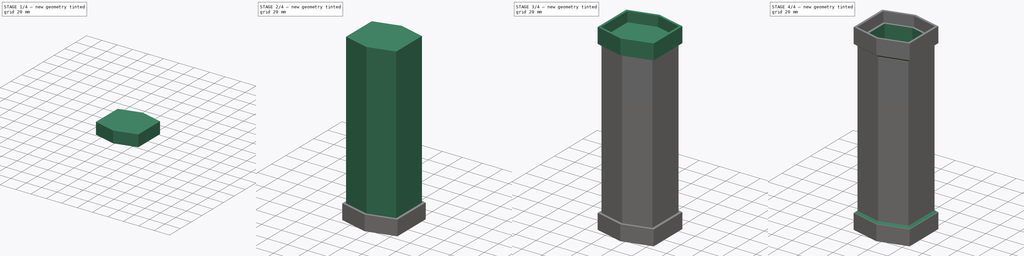
[diagram: build sequence overview — one tinted view per stage of 4, left to right]
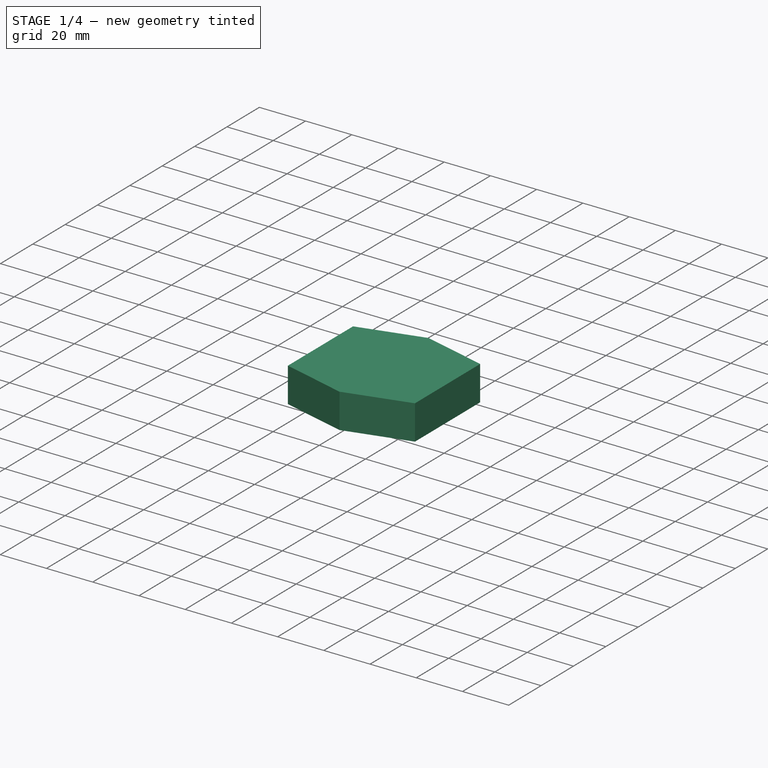
[diagram: stage 1 of 4 — iso view after this stage's code; geometry added in this stage tinted green]
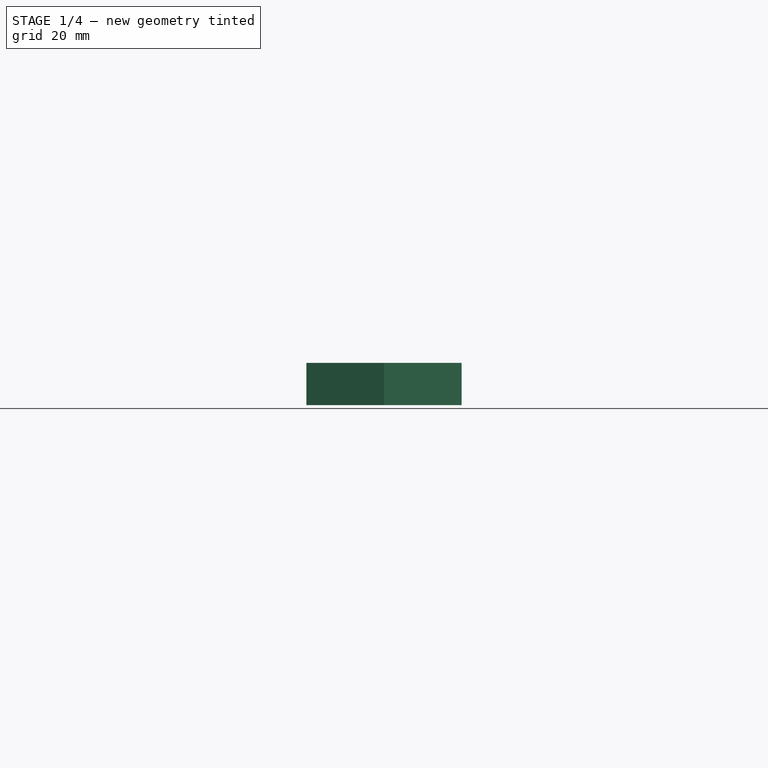
[diagram: stage 1 of 4 — front view after this stage's code; geometry added in this stage tinted green]
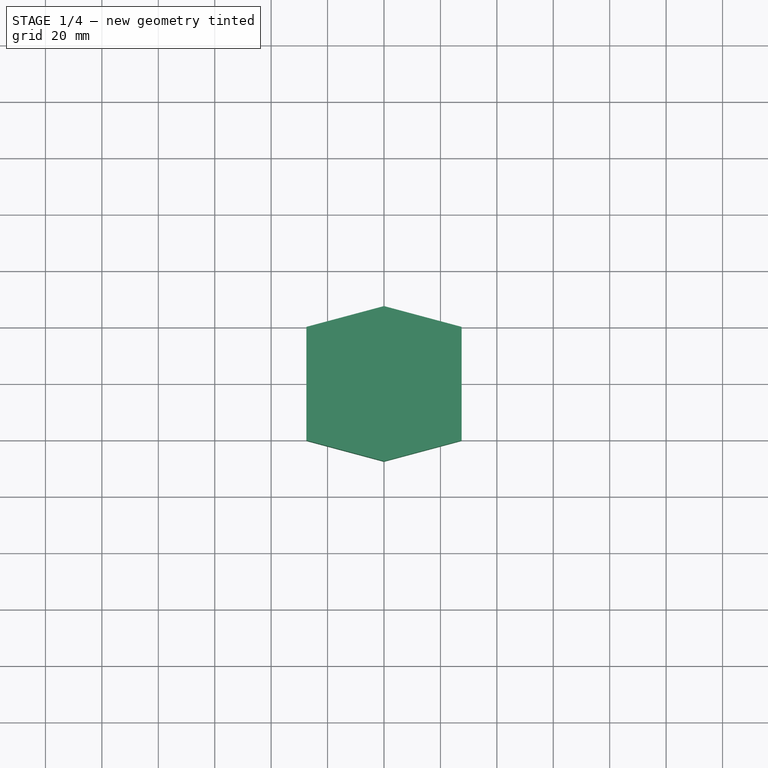
[diagram: stage 1 of 4 — top view after this stage's code; geometry added in this stage tinted green]
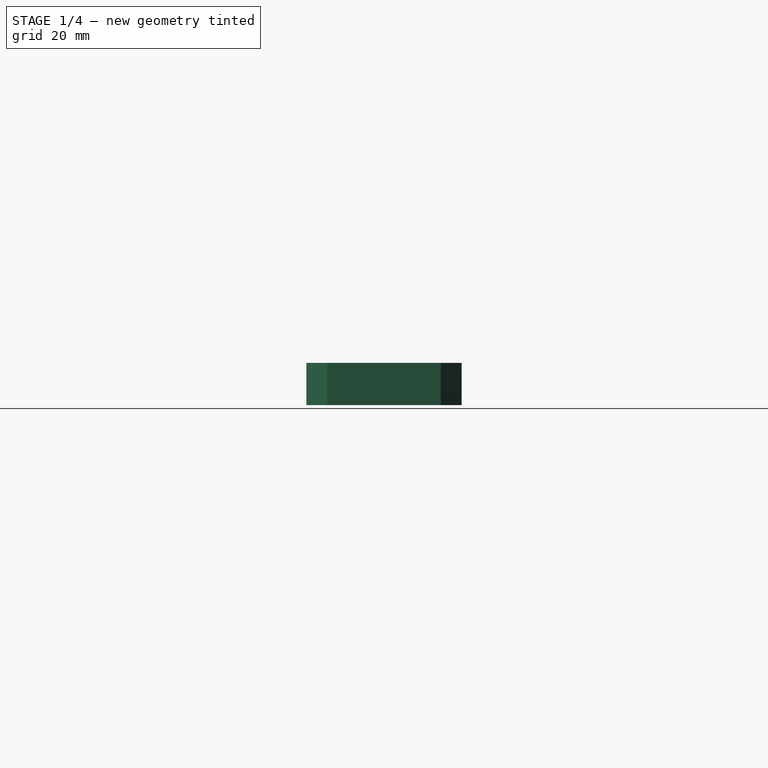
[diagram: stage 1 of 4 — right view after this stage's code; geometry added in this stage tinted green]
FCSTD DOCUMENT  (FreeCAD 0.20R28769 (Git))
Label: Aeroponics_Modular_4-Tower_Hub-Connector
License: All rights reserved
LicenseURL: http://en.wikipedia.org/wiki/All_rights_reserved
objects: Sketcher::SketchObject×6, PartDesign::Pad×6, PartDesign::Body×6, Part::Cut×3, Part::MultiFuse×2, Part::Chamfer×1
note: 30 computed .brp shape members not serialized (recipe doc carries the construction recipe); baked Part::Feature solids carry a one-line shape summary decoded from their .brp

FEATURE [PartDesign::Body] Body
  Group = -> [Sketch,Pad]
  Origin = -> Origin
  Placement = pos=(0,0,15) rot=(0,0,1;0rad)
  Tip = -> Pad
FEATURE [Sketcher::SketchObject] Sketch001
  FullyConstrained = true
  MapMode = 5
  Support = -> [XY_Plane001]
  sketch-geometry (6):
    g0: LineSegment StartX=0 StartY=27.5 StartZ=0 EndX=27.5 EndY=20.1314 EndZ=0
    g1: LineSegment StartX=27.5 StartY=20.1314 StartZ=0 EndX=27.5 EndY=-20.1314 EndZ=0
    g2: LineSegment StartX=27.5 StartY=-20.1314 StartZ=0 EndX=0 EndY=-27.5 EndZ=0
    g3: LineSegment StartX=0 StartY=-27.5 StartZ=0 EndX=-27.5 EndY=-20.1314 EndZ=0
    g4: LineSegment StartX=-27.5 StartY=-20.1314 StartZ=0 EndX=-27.5 EndY=20.1314 EndZ=0
    g5: LineSegment StartX=-27.5 StartY=20.1314 StartZ=0 EndX=0 EndY=27.5 EndZ=0
  constraints (17):
    c: PointOnObject(g0,g-2)
    c: Coincident(g0,g1)
    c: Coincident(g1,g2)
    c: PointOnObject(g2,g-2)
    c: Coincident(g2,g3)
    c: Coincident(g3,g4)
    c: Vertical(g4)
    c: Coincident(g4,g5)
    c: Coincident(g5,g0)
    c: Equal(g5,g0)
    c: Equal(g3,g2)
    c: Symmetric(g0,g1,g-1)
    c: Angle(g5,g0) = 2.61799
    c: Angle(g2,g3) = 2.61799
    c: DistanceY(g2,g0) = 55
    c: Horizontal(g1,g3)
    c: DistanceX(g4,g0) = 55
FEATURE [PartDesign::Pad] Pad001
  Direction = (0,0,1)
  Length = 15
  Length2 = 10
  Profile = -> Sketch001
  ReferenceAxis = -> Sketch001 [N_Axis]
  Type = 0
FEATURE [PartDesign::Body] Body002
  Group = -> [Sketch002,Pad002]
  Origin = -> Origin002
  Tip = -> Pad002
FEATURE [Sketcher::SketchObject] Sketch003
  FullyConstrained = true
  MapMode = 5
  Support = -> [XY_Plane003]
  sketch-geometry (6):
    g0: LineSegment StartX=0 StartY=25.25 StartZ=0 EndX=25.25 EndY=18.4843 EndZ=0
    g1: LineSegment StartX=25.25 StartY=18.4843 StartZ=0 EndX=25.25 EndY=-18.4843 EndZ=0
    g2: LineSegment StartX=25.25 StartY=-18.4843 StartZ=0 EndX=0 EndY=-25.25 EndZ=0
    g3: LineSegment StartX=0 StartY=-25.25 StartZ=0 EndX=-25.25 EndY=-18.4843 EndZ=0
    g4: LineSegment StartX=-25.25 StartY=-18.4843 StartZ=0 EndX=-25.25 EndY=18.4843 EndZ=0
    g5: LineSegment StartX=-25.25 StartY=18.4843 StartZ=0 EndX=0 EndY=25.25 EndZ=0
  constraints (17):
    c: PointOnObject(g0,g-2)
    c: Coincident(g0,g1)
    c: Coincident(g1,g2)
    c: PointOnObject(g2,g-2)
    c: Coincident(g2,g3)
    c: Coincident(g3,g4)
    c: Vertical(g4)
    c: Coincident(g4,g5)
    c: Coincident(g5,g0)
    c: Equal(g5,g0)
    c: Equal(g2,g3)
    c: Horizontal(g3,g1)
    c: Symmetric(g0,g1,g-1)
    c: Angle(g5,g0) = 2.61799
    c: Angle(g2,g3) = 2.61799
    c: DistanceY(g2,g0) = 50.5
    c: DistanceX(g3,g1) = 50.5
FEATURE [PartDesign::Pad] Pad003
  Direction = (0,0,1)
  Length = 10
  Length2 = 10
  Profile = -> Sketch003
  ReferenceAxis = -> Sketch003 [N_Axis]
  Type = 0
FEATURE [PartDesign::Body] Body004
  Group = -> [Sketch004,Pad004]
  Origin = -> Origin004
  Placement = pos=(0,0,5) rot=(0,0,1;0rad)
  Tip = -> Pad004
FEATURE [Part::Cut] Cut
  Base = -> Body001
  Tool = -> Body003
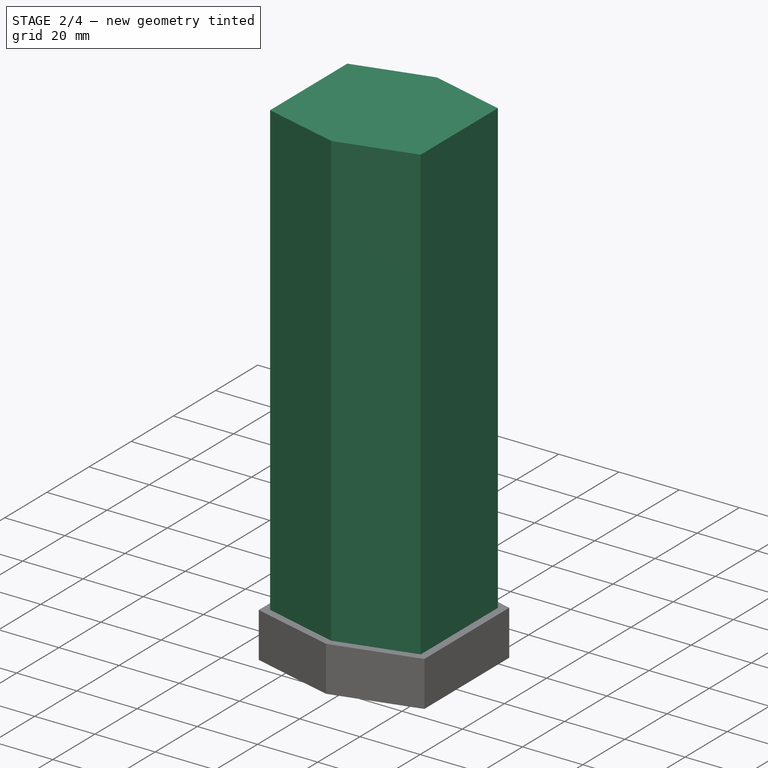
[diagram: stage 2 of 4 — iso view after this stage's code; geometry added in this stage tinted green]
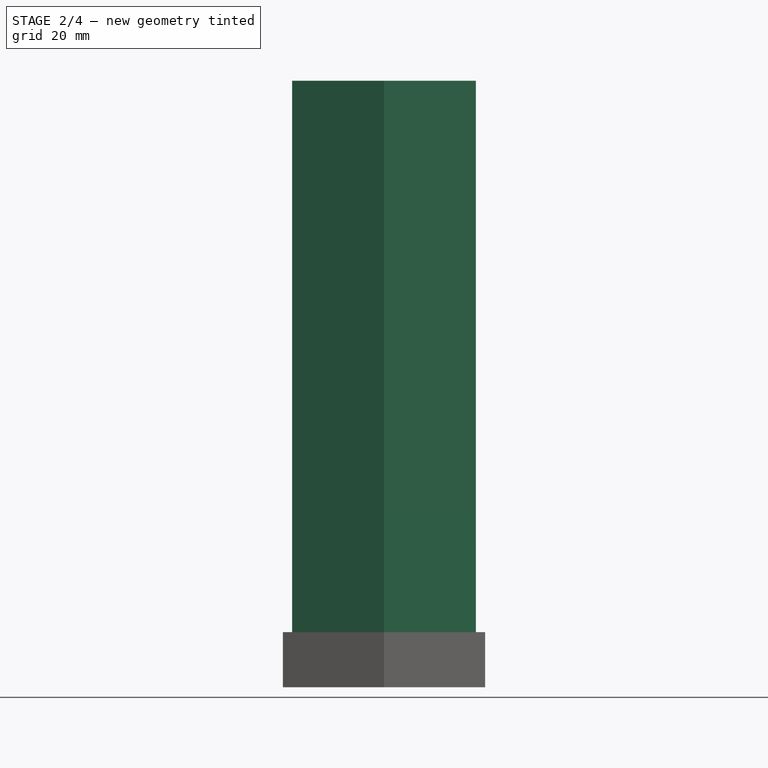
[diagram: stage 2 of 4 — front view after this stage's code; geometry added in this stage tinted green]
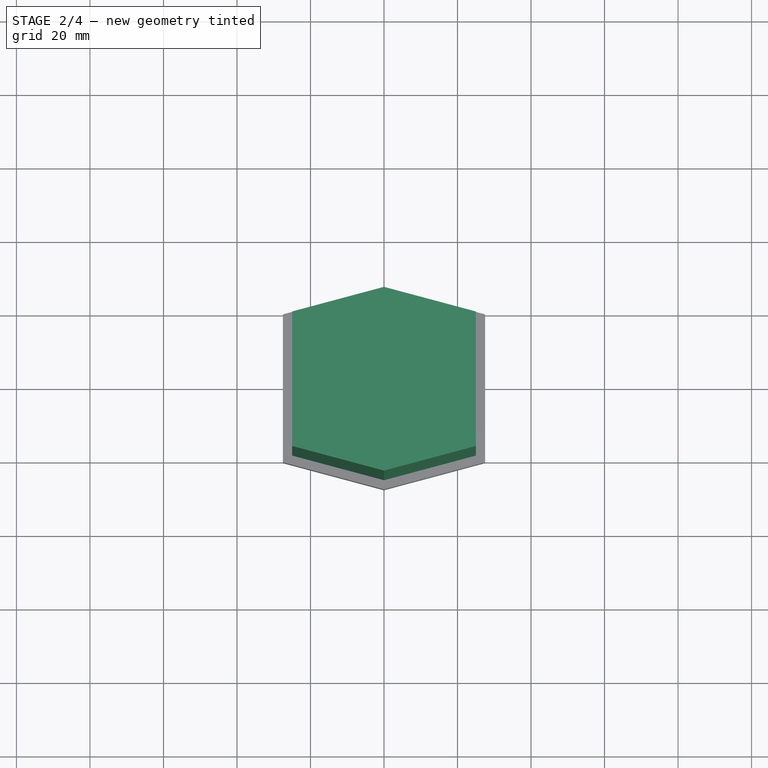
[diagram: stage 2 of 4 — top view after this stage's code; geometry added in this stage tinted green]
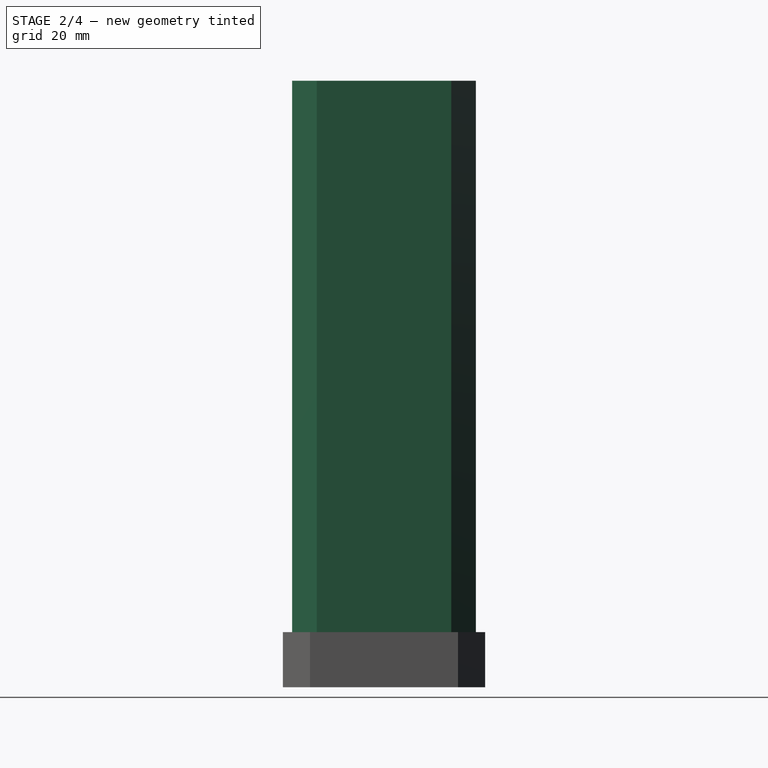
[diagram: stage 2 of 4 — right view after this stage's code; geometry added in this stage tinted green]
FEATURE [Sketcher::SketchObject] Sketch
  FullyConstrained = true
  MapMode = 5
  Support = -> [XY_Plane]
  sketch-geometry (6):
    g0: LineSegment StartX=0 StartY=25 StartZ=0 EndX=25 EndY=18.3013 EndZ=0
    g1: LineSegment StartX=25 StartY=18.3013 StartZ=0 EndX=25 EndY=-18.3013 EndZ=0
    g2: LineSegment StartX=25 StartY=-18.3013 StartZ=0 EndX=0 EndY=-25 EndZ=0
    g3: LineSegment StartX=0 StartY=-25 StartZ=0 EndX=-25 EndY=-18.3013 EndZ=0
    g4: LineSegment StartX=-25 StartY=-18.3013 StartZ=0 EndX=-25 EndY=18.3013 EndZ=0
    g5: LineSegment StartX=-25 StartY=18.3013 StartZ=0 EndX=0 EndY=25 EndZ=0
  constraints (17):
    c: PointOnObject(g0,g-2)
    c: Coincident(g0,g1)
    c: Coincident(g1,g2)
    c: PointOnObject(g2,g-2)
    c: Coincident(g2,g3)
    c: Coincident(g3,g4)
    c: Vertical(g4)
    c: Coincident(g4,g5)
    c: Coincident(g5,g0)
    c: Equal(g1,g4)
    c: Angle(g5,g0) = 2.61799
    c: Angle(g2,g3) = 2.61799
    c: Equal(g2,g3)
    c: Horizontal(g3,g1)
    c: Symmetric(g0,g1,g-1)
    c: DistanceX(g3,g1) = 50
    c: DistanceY(g2,g0) = 50
FEATURE [PartDesign::Pad] Pad
  Direction = (0,0,1)
  Length = 150
  Length2 = 10
  Profile = -> Sketch
  ReferenceAxis = -> Sketch [N_Axis]
  Type = 0
FEATURE [PartDesign::Body] Body003
  Group = -> [Sketch003,Pad003]
  Origin = -> Origin003
  Tip = -> Pad003
FEATURE [Sketcher::SketchObject] Sketch004
  FullyConstrained = true
  MapMode = 5
  Support = -> [XY_Plane004]
  sketch-geometry (6):
    g0: LineSegment StartX=0 StartY=25.25 StartZ=0 EndX=25.25 EndY=18.4843 EndZ=0
    g1: LineSegment StartX=25.25 StartY=18.4843 StartZ=0 EndX=25.25 EndY=-18.4843 EndZ=0
    g2: LineSegment StartX=25.25 StartY=-18.4843 StartZ=0 EndX=0 EndY=-25.25 EndZ=0
    g3: LineSegment StartX=0 StartY=-25.25 StartZ=0 EndX=-25.25 EndY=-18.4843 EndZ=0
    g4: LineSegment StartX=-25.25 StartY=-18.4843 StartZ=0 EndX=-25.25 EndY=18.4843 EndZ=0
    g5: LineSegment StartX=-25.25 StartY=18.4843 StartZ=0 EndX=0 EndY=25.25 EndZ=0
  constraints (17):
    c: PointOnObject(g0,g-2)
    c: Coincident(g0,g1)
    c: Coincident(g1,g2)
    c: PointOnObject(g2,g-2)
    c: Coincident(g2,g3)
    c: Coincident(g3,g4)
    c: Vertical(g4)
    c: Coincident(g4,g5)
    c: Coincident(g5,g0)
    c: Equal(g5,g0)
    c: Equal(g2,g3)
    c: Horizontal(g3,g1)
    c: Symmetric(g0,g1,g-1)
    c: Angle(g5,g0) = 2.61799
    c: Angle(g2,g3) = 2.61799
    c: DistanceY(g2,g0) = 50.5
    c: DistanceX(g3,g1) = 50.5
FEATURE [PartDesign::Pad] Pad004
  Direction = (0,0,1)
  Length = 10
  Length2 = 10
  Profile = -> Sketch004
  ReferenceAxis = -> Sketch004 [N_Axis]
  Type = 0
FEATURE [PartDesign::Body] Body005
  Group = -> [Sketch005,Pad005]
  Origin = -> Origin005
  Tip = -> Pad005
FEATURE [Part::MultiFuse] Fusion
  Shapes = -> [Body,Cut]
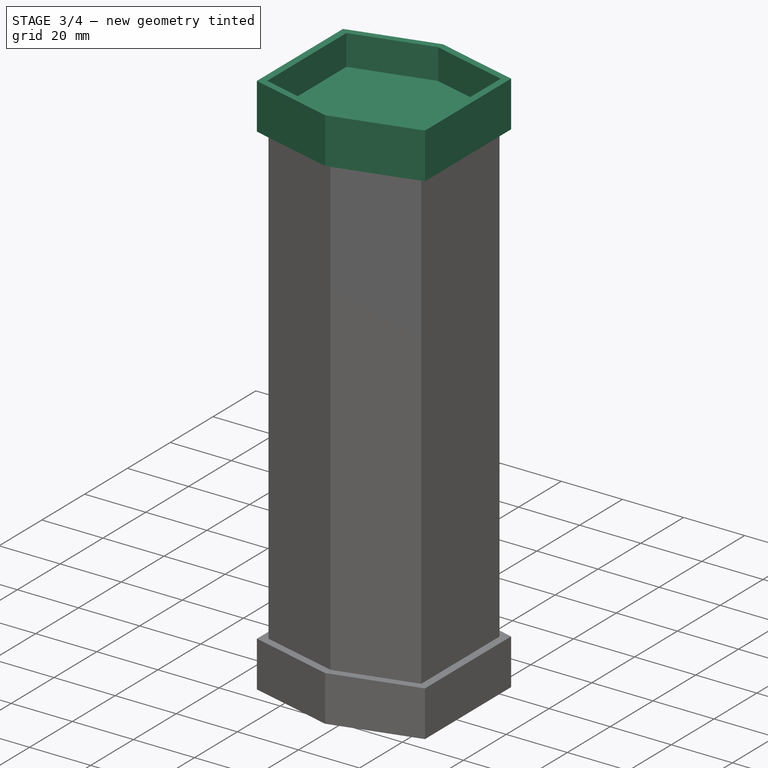
[diagram: stage 3 of 4 — iso view after this stage's code; geometry added in this stage tinted green]
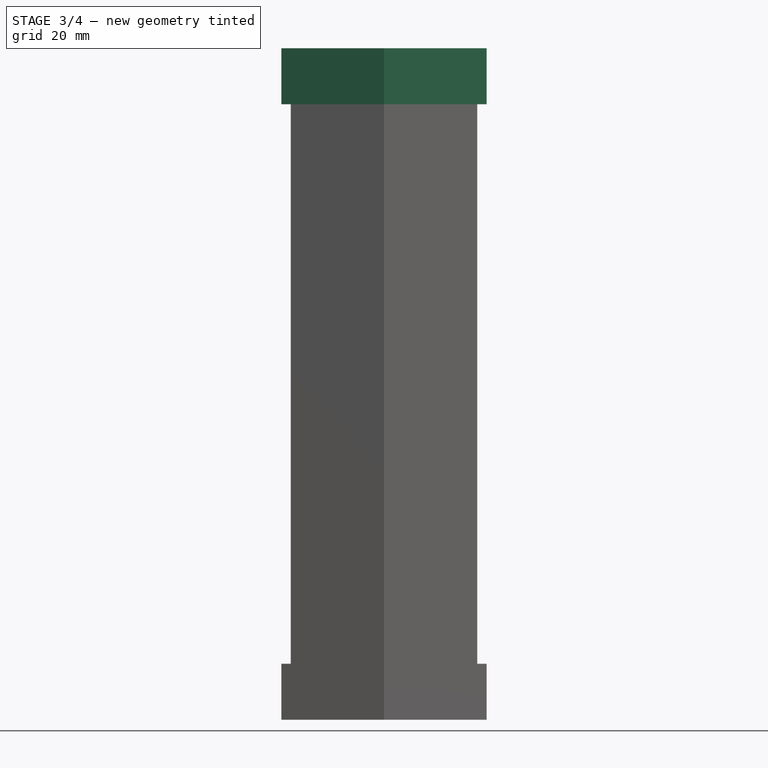
[diagram: stage 3 of 4 — front view after this stage's code; geometry added in this stage tinted green]
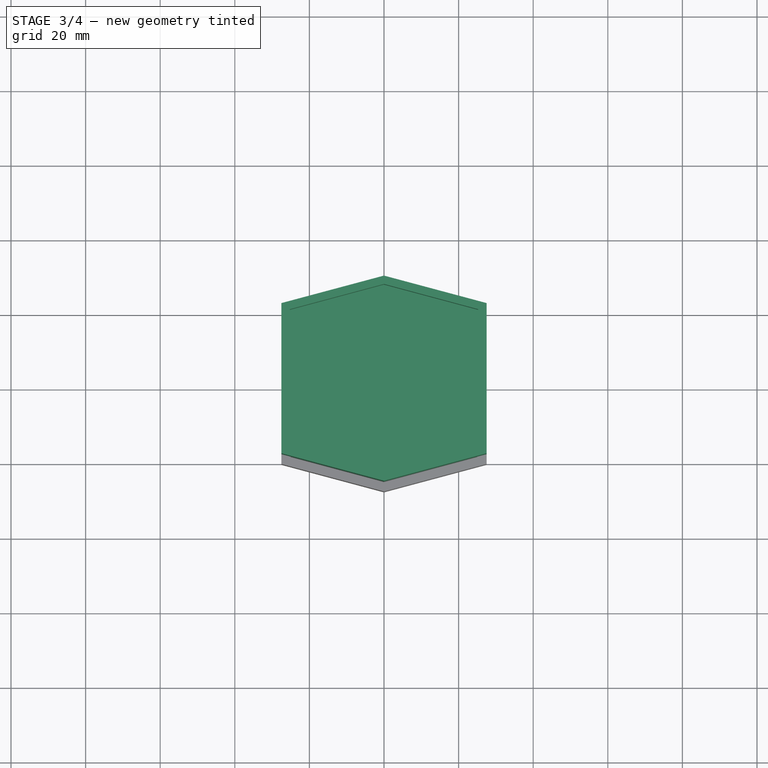
[diagram: stage 3 of 4 — top view after this stage's code; geometry added in this stage tinted green]
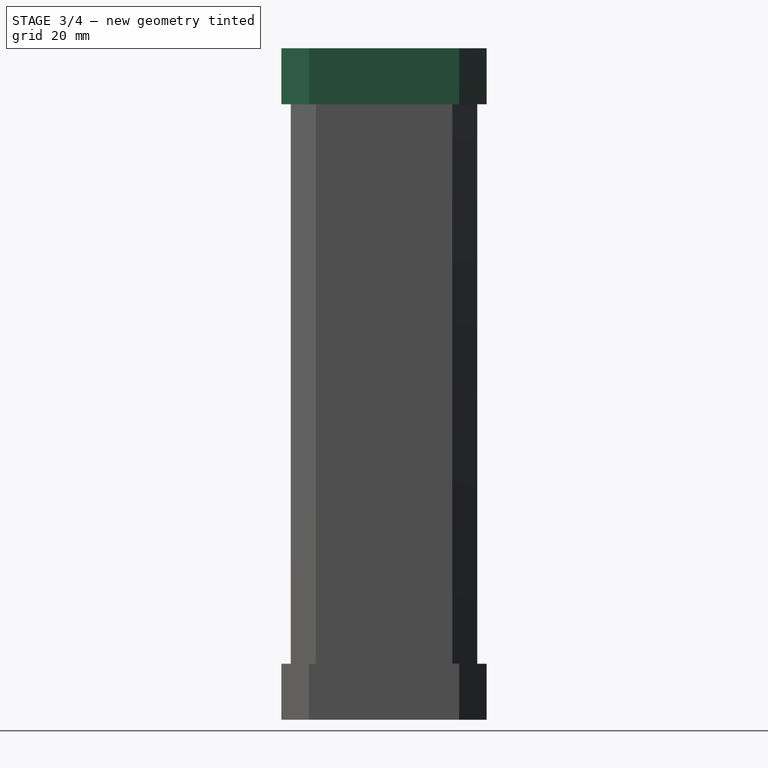
[diagram: stage 3 of 4 — right view after this stage's code; geometry added in this stage tinted green]
FEATURE [PartDesign::Body] Body001
  Group = -> [Sketch001,Pad001]
  Origin = -> Origin001
  Tip = -> Pad001
FEATURE [Sketcher::SketchObject] Sketch002
  FullyConstrained = true
  MapMode = 5
  Support = -> [XY_Plane002]
  sketch-geometry (6):
    g0: LineSegment StartX=0 StartY=27.5 StartZ=0 EndX=27.5 EndY=20.1314 EndZ=0
    g1: LineSegment StartX=27.5 StartY=20.1314 StartZ=0 EndX=27.5 EndY=-20.1314 EndZ=0
    g2: LineSegment StartX=27.5 StartY=-20.1314 StartZ=0 EndX=0 EndY=-27.5 EndZ=0
    g3: LineSegment StartX=0 StartY=-27.5 StartZ=0 EndX=-27.5 EndY=-20.1314 EndZ=0
    g4: LineSegment StartX=-27.5 StartY=-20.1314 StartZ=0 EndX=-27.5 EndY=20.1314 EndZ=0
    g5: LineSegment StartX=-27.5 StartY=20.1314 StartZ=0 EndX=0 EndY=27.5 EndZ=0
  constraints (17):
    c: PointOnObject(g0,g-2)
    c: Coincident(g0,g1)
    c: Coincident(g1,g2)
    c: PointOnObject(g2,g-2)
    c: Coincident(g2,g3)
    c: Coincident(g3,g4)
    c: Vertical(g4)
    c: Coincident(g4,g5)
    c: Coincident(g5,g0)
    c: Angle(g5,g0) = 2.61799
    c: Angle(g2,g3) = 2.61799
    c: Equal(g5,g0)
    c: Equal(g3,g2)
    c: Symmetric(g0,g1,g-1)
    c: DistanceX(g4,g0) = 55
    c: DistanceY(g2,g0) = 55
    c: Horizontal(g3,g1)
FEATURE [PartDesign::Pad] Pad002
  Direction = (0,0,1)
  Length = 15
  Length2 = 10
  Profile = -> Sketch002
  ReferenceAxis = -> Sketch002 [N_Axis]
  Type = 0
FEATURE [Part::Cut] Cut001
  Base = -> Body002
  Placement = pos=(0,0,165) rot=(0,0,1;0rad)
  Tool = -> Body004
FEATURE [Part::MultiFuse] Fusion001
  Shapes = -> [Fusion,Cut001]
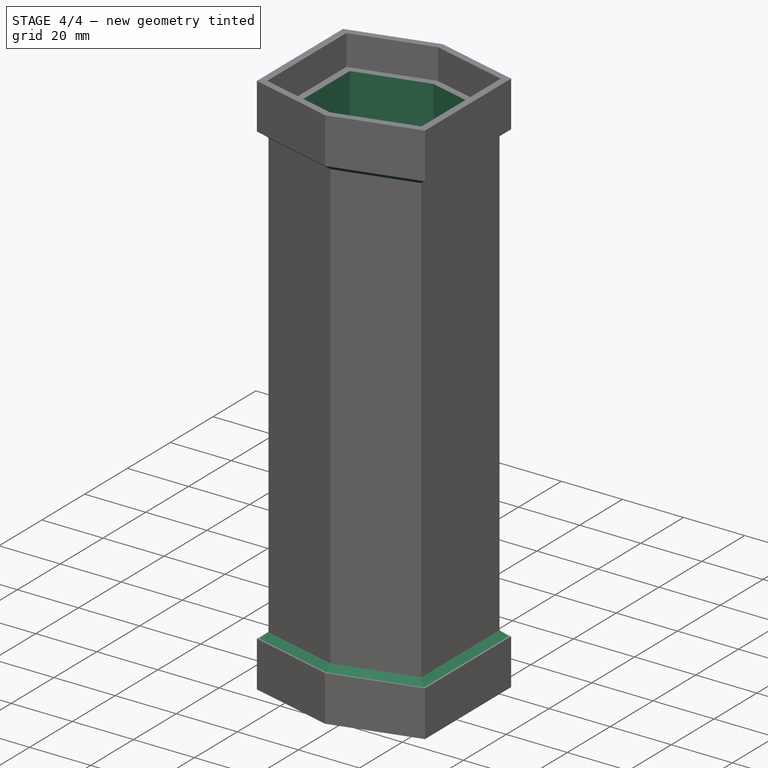
[diagram: stage 4 of 4 — iso view after this stage's code; geometry added in this stage tinted green]
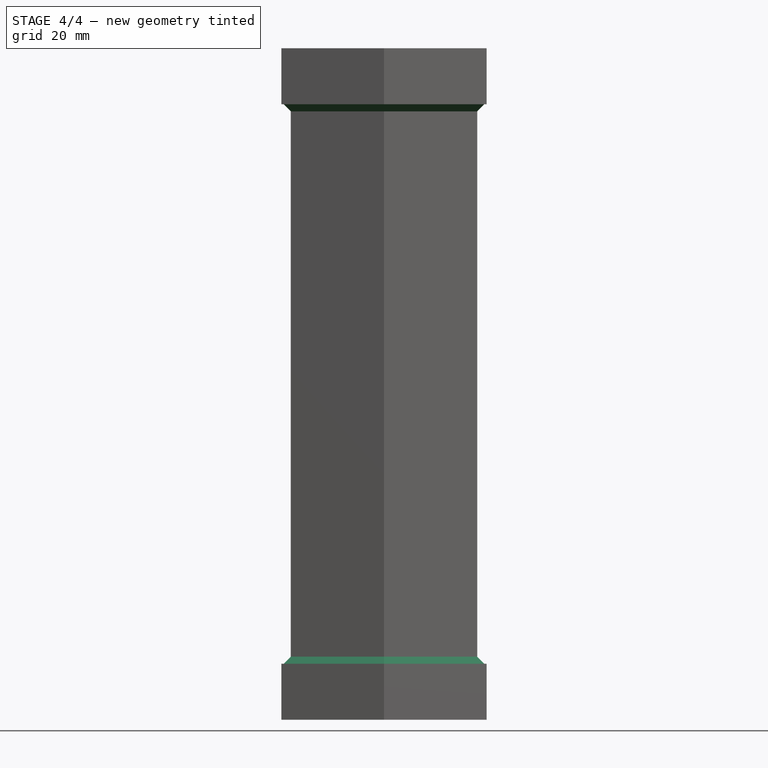
[diagram: stage 4 of 4 — front view after this stage's code; geometry added in this stage tinted green]
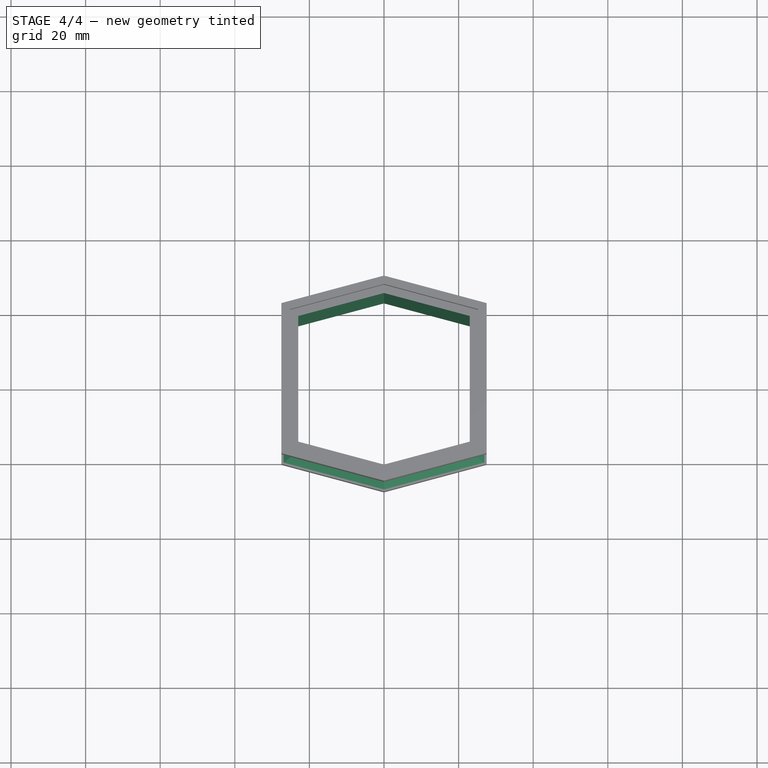
[diagram: stage 4 of 4 — top view after this stage's code; geometry added in this stage tinted green]
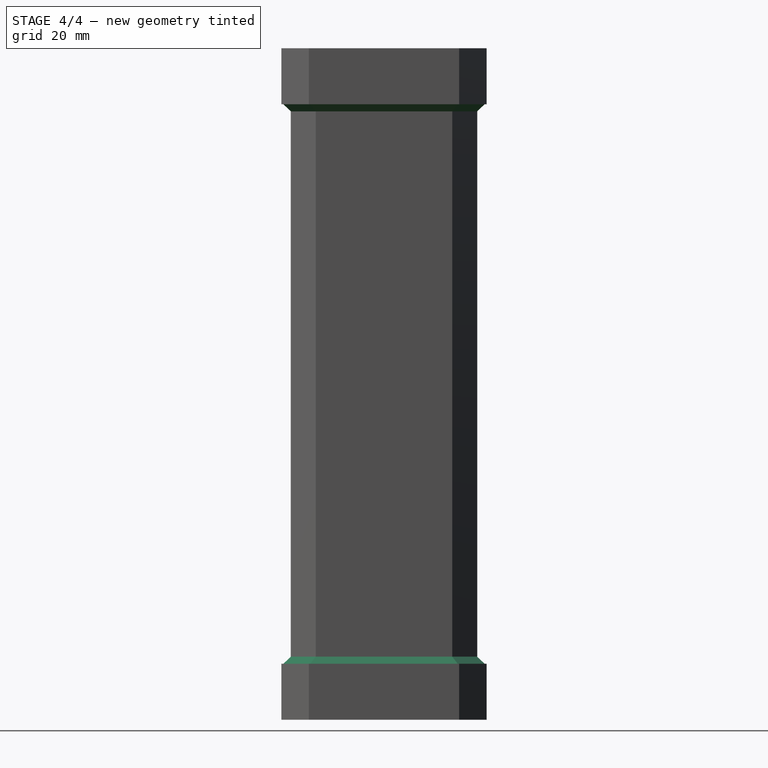
[diagram: stage 4 of 4 — right view after this stage's code; geometry added in this stage tinted green]
FEATURE [Sketcher::SketchObject] Sketch005
  FullyConstrained = true
  MapMode = 5
  Support = -> [XY_Plane005]
  sketch-geometry (6):
    g0: LineSegment StartX=0 StartY=23 StartZ=0 EndX=23 EndY=16.8372 EndZ=0
    g1: LineSegment StartX=23 StartY=16.8372 StartZ=0 EndX=23 EndY=-16.8372 EndZ=0
    g2: LineSegment StartX=23 StartY=-16.8372 StartZ=0 EndX=0 EndY=-23 EndZ=0
    g3: LineSegment StartX=0 StartY=-23 StartZ=0 EndX=-23 EndY=-16.8372 EndZ=0
    g4: LineSegment StartX=-23 StartY=-16.8372 StartZ=0 EndX=-23 EndY=16.8372 EndZ=0
    g5: LineSegment StartX=-23 StartY=16.8372 StartZ=0 EndX=0 EndY=23 EndZ=0
  constraints (17):
    c: PointOnObject(g0,g-2)
    c: Coincident(g0,g1)
    c: Coincident(g1,g2)
    c: PointOnObject(g2,g-2)
    c: Coincident(g2,g3)
    c: Coincident(g3,g4)
    c: Vertical(g4)
    c: Coincident(g4,g5)
    c: Coincident(g5,g0)
    c: Equal(g0,g5)
    c: Equal(g3,g2)
    c: Horizontal(g3,g1)
    c: Symmetric(g0,g1,g-1)
    c: Angle(g5,g0) = 2.61799
    c: Angle(g2,g3) = 2.61799
    c: DistanceY(g2,g0) = 46
    c: DistanceX(g3,g1) = 46
FEATURE [PartDesign::Pad] Pad005
  Direction = (0,0,1)
  Length = 180
  Length2 = 10
  Profile = -> Sketch005
  ReferenceAxis = -> Sketch005 [N_Axis]
  Type = 0
FEATURE [Part::Cut] Cut002
  Base = -> Fusion001
  Tool = -> Body005
FEATURE [Part::Chamfer] Chamfer
  Base = -> Cut002
  Edges = 12 edges r=1.9: [Edge14,Edge15,Edge16,Edge17,Edge18,Edge19,Edge33,Edge35,Edge37,Edge39,Edge41,Edge42]
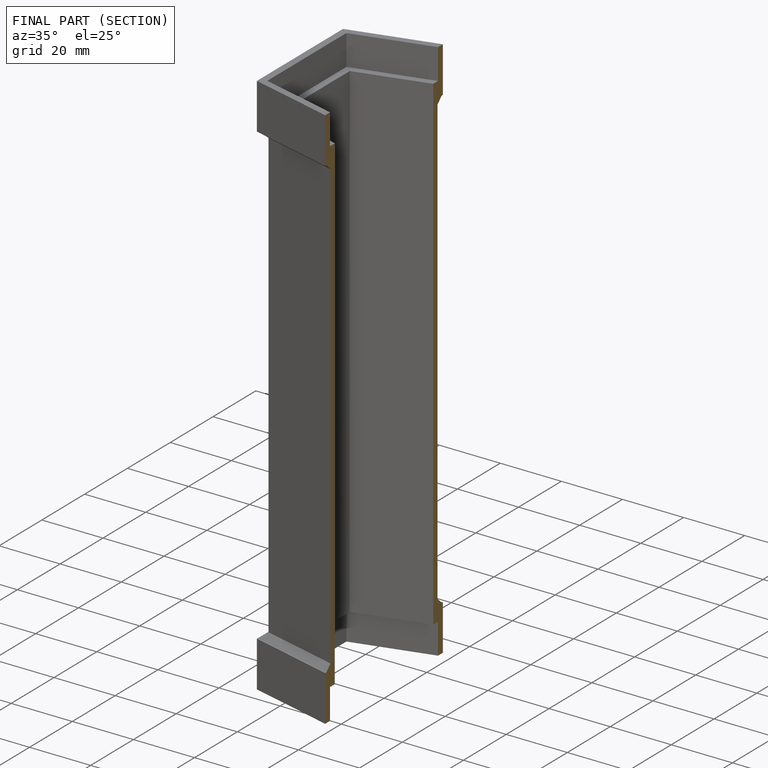
[diagram: finished part — half-section view (interior)]
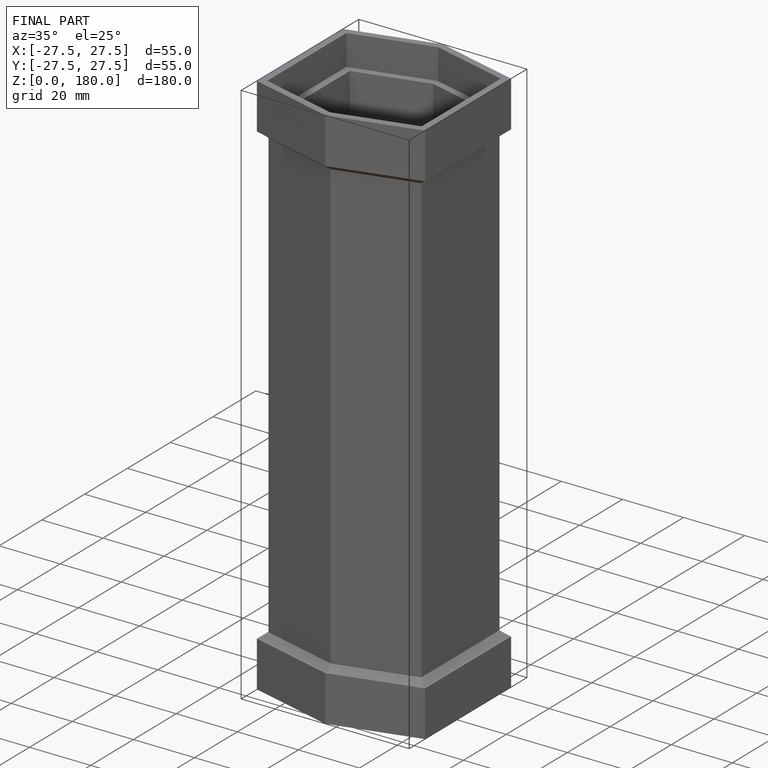
[diagram: finished part — iso view with bounding-box wireframe]
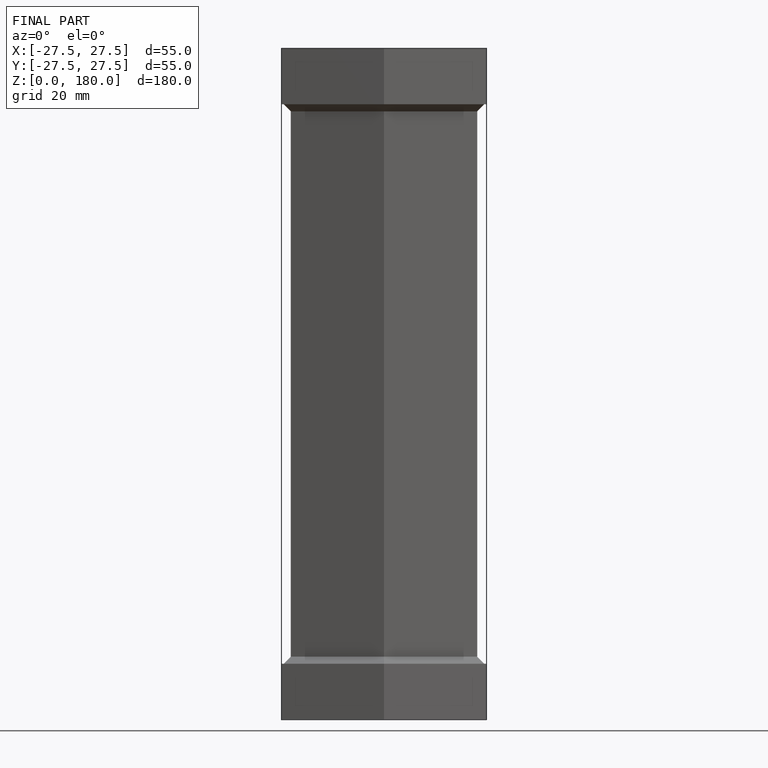
[diagram: finished part — front view with bounding-box wireframe]
